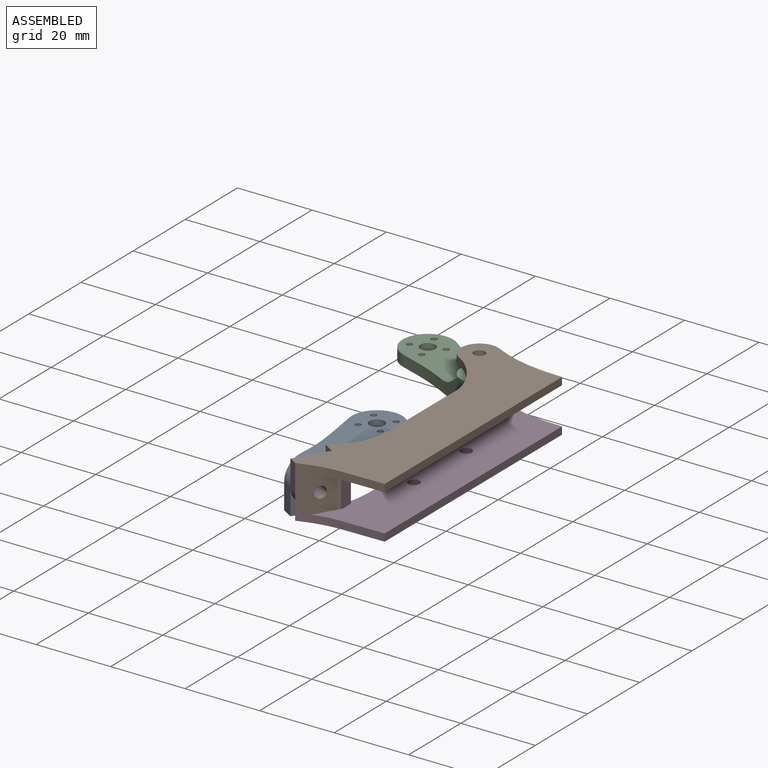
[diagram: assembled view]
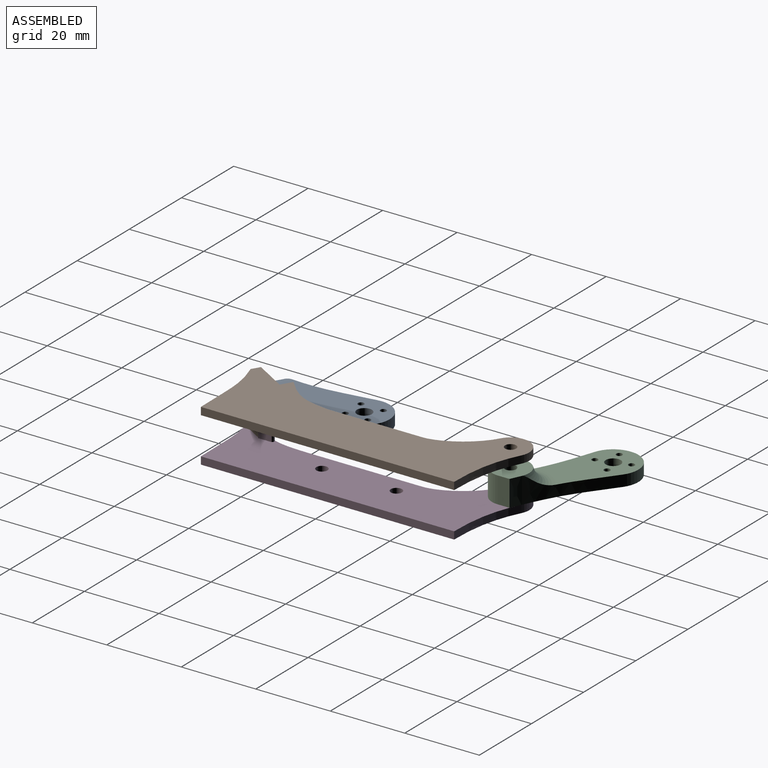
[diagram: assembled view, second angle]
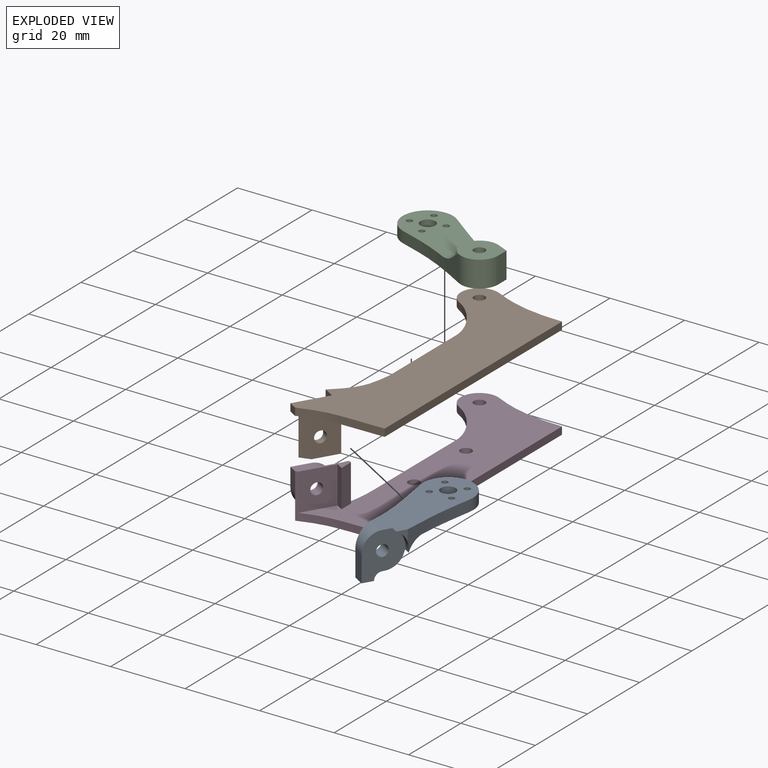
[diagram: exploded view]
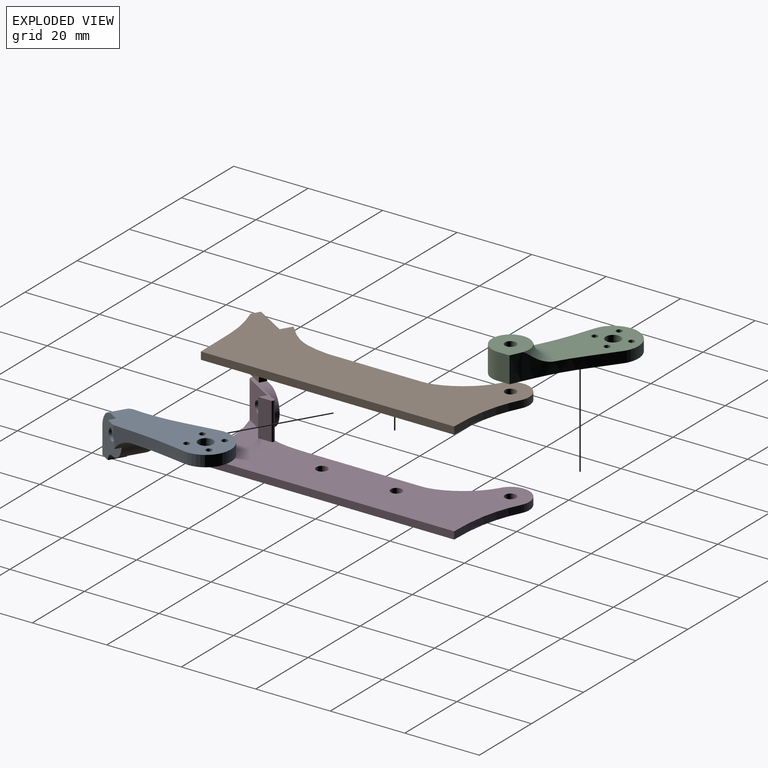
[diagram: exploded view, second angle]
ASSEMBLY  parts=4 mates=3
PART A: 23 faces, bbox 31.5x25.9x12 mm
  f0: cylinder r=1.55mm len=5.02mm, axis (-0.86,0.51,0), area 39mm2, adj f1,f22
  f1: plane 12x9.08mm, normal (0.86,-0.51,0), area 89.4mm2, adj f0,f4,f11,f13,f14,f16,f17,f18
  f2: extruded ~24.23x12mm, area 120.3mm2, adj f3,f4,f5,f11,f13,f16,f17,f18
  f3: plane 24.1x16.41mm, normal (0,0,1), area 207.9mm2, adj f2,f5,f6,f7,f8,f9,f10,f12
  f4: plane 29.44x22mm, normal (0,0,-1), area 302.4mm2, adj f1,f2,f5,f6,f7,f8,f9,f10
  f5: cylinder r=6.75mm len=13.09mm, axis (0,0,-1), area 69.8mm2, adj f2,f3,f4,f6
  f6: extruded ~17.15x11.83mm, area 66.7mm2, adj f3,f4,f5,f14,f15,f18
  f7: cylinder r=0.8mm len=3mm, axis (0,0,-1), area 15.1mm2, adj f3,f4
  f8: cylinder r=0.8mm len=3mm, axis (0,0,-1), area 15.1mm2, adj f3,f4
  f9: cylinder r=0.8mm len=3mm, axis (0,0,-1), area 15.1mm2, adj f3,f4
  f10: cylinder r=0.8mm len=3mm, axis (0,0,-1), area 15.1mm2, adj f3,f4
  f11: plane 7x2.89mm, normal (0.51,0.86,0), area 23.5mm2, adj f1,f2,f13,f20
  f12: cylinder r=2mm len=4mm, axis (0,0,-1), area 37.7mm2, adj f3,f4
  f13: plane 5.53x4.31mm, normal (0,0,1), area 12mm2, adj f1,f2,f11,f17
  f14: cylinder r=5.57mm len=5.79mm, axis (-0.86,0.51,0), area 13.6mm2, adj f1,f4,f6,f15,f18
  f15: plane 3x2.35mm, normal (0.86,-0.51,0), area 3.1mm2, adj f4,f6,f14
  f16: plane 5.22x3.25mm, normal (0,0,1), area 2.6mm2, adj f1,f2,f17,f19
  f17: cylinder r=2mm len=5.81mm, axis (-0.86,0.51,0), area 15.6mm2, adj f1,f2,f13,f16
  f18: cylinder r=5mm len=14.36mm, axis (0.86,-0.51,0), area 67.5mm2, adj f1,f2,f3,f6,f14,f19
  f19: cylinder r=5mm len=9.77mm, axis (0.86,-0.51,0), area 46.4mm2, adj f1,f2,f16,f18
  f20: cylinder r=5mm len=7.35mm, axis (-0.86,0.51,0), area 32.5mm2, adj f1,f2,f4,f11
  f21: cylinder r=3.5mm len=7.75mm, axis (0.86,-0.51,0), area 36.2mm2, adj f2,f22
  f22: plane 7x5.97mm, normal (-0.86,0.51,0), area 30.9mm2, adj f0,f2,f21
PART B: 18 faces, bbox 27x75.1x12 mm
  f0: plane 75.08x27mm, normal (0,0,-1), area 1254mm2, adj f1,f2,f3,f4,f5,f6,f7,f8
  f1: plane 2.89x2mm, normal (-0.51,-0.86,0), area 6.7mm2, adj f0,f2,f10,f12
  f2: plane 8.59x5.13mm, normal (-0.86,0.51,0), area 20mm2, adj f0,f1,f3,f12
  f3: plane 2.15x2mm, normal (-0.51,-0.86,0), area 5mm2, adj f0,f2,f4,f12
  f4: extruded ~22.42x12mm, area 75.2mm2, adj f0,f3,f5,f12,f13,f15,f16
  f5: plane 68x2mm, normal (1,0,0), area 136mm2, adj f0,f4,f6,f12
  f6: extruded ~19.75x4.22mm, area 40.8mm2, adj f0,f5,f7,f12
  f7: cylinder r=5mm len=9.4mm, axis (0,0,-1), area 31.1mm2, adj f0,f6,f8,f12
  f8: extruded ~14.48x9.38mm, area 35.8mm2, adj f0,f7,f9,f12
  f9: plane 25.38x2mm, normal (-1,0,0), area 50.8mm2, adj f0,f8,f10,f12
  f10: extruded ~14.24x7.32mm, area 33.1mm2, adj f0,f1,f9,f12
  f11: cylinder r=1.5mm len=3mm, axis (0,0,-1), area 18.8mm2, adj f0,f12
  f12: plane 75.08x27mm, normal (0,0,1), area 1270.5mm2, adj f1,f2,f3,f4,f5,f6,f7,f8
  f13: plane 10x6.17mm, normal (0.86,-0.51,0), area 64.3mm2, adj f0,f4,f14,f16,f17
  f14: plane 10x1.72mm, normal (0.51,0.86,0), area 20mm2, adj f0,f13,f15,f16
  f15: plane 10x8.07mm, normal (-0.86,0.51,0), area 86.4mm2, adj f0,f4,f14,f16,f17
  f16: plane 8.08x6.55mm, normal (0,0,-1), area 16.5mm2, adj f4,f13,f14,f15
  f17: cylinder r=1.55mm len=3.69mm, axis (-0.86,0.51,0), area 19.5mm2, adj f13,f15
PART C: 17 faces, bbox 35.1x31.3x8 mm
  f0: cylinder r=5mm len=7mm, axis (0,0,-1), area 1.1mm2, adj f5,f7,f14,f15
  f1: plane 24.06x19.13mm, normal (0,0,1), area 229.8mm2, adj f2,f3,f7,f8,f9,f10,f11,f12
  f2: cylinder r=6.75mm len=13.17mm, axis (0,0,-1), area 70.2mm2, adj f1,f3,f7,f14
  f3: extruded ~21.77x9.86mm, area 85.2mm2, adj f1,f2,f6,f14,f16
  f4: plane 7x3.21mm, normal (1,0,0), area 22.4mm2, adj f5,f6,f14,f15
  f5: extruded ~7x2.75mm, area 21.1mm2, adj f0,f4,f14,f15
  f6: cylinder r=5mm len=7.55mm, axis (0,0,-1), area 73.7mm2, adj f3,f4,f14,f15
  f7: extruded ~20.32x12.87mm, area 85.7mm2, adj f0,f1,f2,f14,f16
  f8: cylinder r=2mm len=4mm, axis (0,0,-1), area 37.7mm2, adj f1,f14
  f9: cylinder r=0.8mm len=3mm, axis (0,0,-1), area 15.1mm2, adj f1,f14
  f10: cylinder r=0.8mm len=3mm, axis (0,0,-1), area 15.1mm2, adj f1,f14
  f11: cylinder r=0.8mm len=3mm, axis (0,0,-1), area 15.1mm2, adj f1,f14
  f12: cylinder r=0.8mm len=3mm, axis (0,0,-1), area 15.1mm2, adj f1,f14
  f13: cylinder r=1.5mm len=7mm, axis (0,0,-1), area 66mm2, adj f14,f15
  f14: plane 33.99x23.73mm, normal (0,0,-1), area 355.9mm2, adj f0,f2,f3,f4,f5,f6,f7,f8
  f15: plane 10.01x10mm, normal (0,0,1), area 73.2mm2, adj f0,f4,f5,f6,f13,f16
  f16: torus R=9.9mm, axis (0,0,1), area 76.6mm2, adj f1,f3,f7,f15
PART D: 25 faces, bbox 27x75.1x12 mm
  f0: plane 11.12x9.56mm, normal (0,0,1), area 22.7mm2, adj f1,f3,f4,f8,f9,f17,f18,f19
  f1: plane 10x3.4mm, normal (1,0,0), area 34mm2, adj f0,f15,f21,f24
  f2: cylinder r=1.55mm len=4.2mm, axis (-0.86,0.51,0), area 29.2mm2, adj f3,f23
  f3: plane 10x8.59mm, normal (-0.86,0.51,0), area 76.4mm2, adj f0,f2,f4,f18
  f4: plane 5x2.15mm, normal (-0.51,-0.86,0), area 12.5mm2, adj f0,f3,f9,f18
  f5: cylinder r=5mm len=9.4mm, axis (0,0,-1), area 31.1mm2, adj f6,f12,f15,f16
  f6: extruded ~14.48x9.38mm, area 35.8mm2, adj f5,f7,f15,f16
  f7: plane 30.78x2mm, normal (-1,0,0), area 61.6mm2, adj f6,f8,f15,f16
  f8: extruded ~12x11.84mm, area 49.6mm2, adj f0,f7,f15,f16,f19,f20,f22
  f9: extruded ~22.42x12mm, area 53.2mm2, adj f0,f4,f10,f15,f16,f20,f23
  f10: plane 68x2mm, normal (1,0,0), area 136mm2, adj f9,f12,f15,f16
  f11: cylinder r=1.5mm len=3mm, axis (0,0,-1), area 18.8mm2, adj f15,f16
  f12: extruded ~19.75x4.22mm, area 40.8mm2, adj f5,f10,f15,f16
  f13: cylinder r=1.5mm len=3mm, axis (0,0,-1), area 18.8mm2, adj f15,f16
  f14: cylinder r=1.5mm len=3mm, axis (0,0,-1), area 18.8mm2, adj f15,f16
  f15: plane 75.08x27mm, normal (0,0,1), area 1180.7mm2, adj f1,f5,f6,f7,f8,f9,f10,f11
  f16: plane 75.08x27mm, normal (0,0,-1), area 1191mm2, adj f5,f6,f7,f8,f9,f10,f11,f12
  f17: plane 10x0.14mm, normal (0,1,0), area 1.4mm2, adj f0,f15,f21,f22
  f18: cylinder r=5mm len=10mm, axis (-0.86,0.51,0), area 58.9mm2, adj f0,f3,f4,f19,f20
  f19: plane 5x4.29mm, normal (-0.86,0.51,0), area 5.4mm2, adj f0,f8,f18
  f20: plane 8.59x7mm, normal (-0.86,0.51,0), area 30.7mm2, adj f8,f9,f16,f18
  f21: cylinder r=0.5mm len=10mm, axis (0,0,1), area 7.9mm2, adj f0,f1,f15,f17
  f22: cylinder r=0.5mm len=10mm, axis (0,0,-1), area 6.2mm2, adj f0,f8,f15,f17
  f23: plane 10x8.07mm, normal (0.86,-0.51,0), area 86.4mm2, adj f0,f2,f9,f15,f24
  f24: plane 10x1.86mm, normal (-0.51,-0.86,0), area 21.7mm2, adj f0,f1,f15,f23
PLACE A rot(axis=(-0.86,0.51,0),180deg) t=(-25.95,-66.37,9.28)mm
PLACE B t=(14.02,0.55,-4.72)mm
PLACE C t=(14.02,0.55,-7.72)mm
PLACE D t=(14.02,0.55,-4.72)mm
MATE revolute C.f0 <-> D.f5  axis (0,0,-1) through (-7.98,32.81,-2.72)mm
MATE fastened B.f0 <-> D.f0  axis (0,0,1) through (-10.55,-36,7.28)mm
MATE revolute A.f0 <-> D.f2  axis (-0.86,0.51,0) through (-7.98,-31.7,2.28)mm
